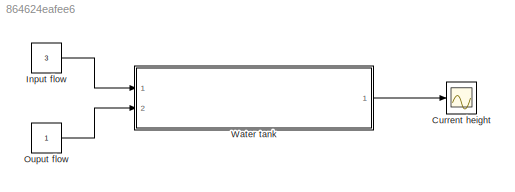
MODEL slx_864624eafee6
KIND model
CONFIG AbsTol = auto
CONFIG EnableMultiTasking = off
CONFIG FixedStep = 0.1
CONFIG MaxStep = auto
CONFIG MinStep = auto
CONFIG RelTol = 1e-3
CONFIG SampleTimeConstraint = Unconstrained
CONFIG SolverName = VariableStepAuto
CONFIG StartTime = 0.0
CONFIG StopTime = 1000
BLOCK [Scope] Current height
  Floating = off
  NumInputPorts = 1
  Ports = [1]
  ScopeSpecificationString = Simulink.scopes.TimeScopeBlockCfg('CurrentConfiguration', extmgr.ConfigurationSet(extmgr.Configuration('Core','General UI',true,'ShowMainToolbar',false,'ShowStatusbar',false),extmgr.Configuration('Core','Source UI',true),extmgr.Configuration('Sources','WiredSimulink',true),extmgr.Configuration('Visuals','Time Domain',true,'SerializedDisplays',{struct('MinYLimReal','-0.252','MaxYLimReal','2.26801',...<+1429ch>
BLOCK [Constant] Input flow
  Value = 3
BLOCK [Constant] Ouput flow
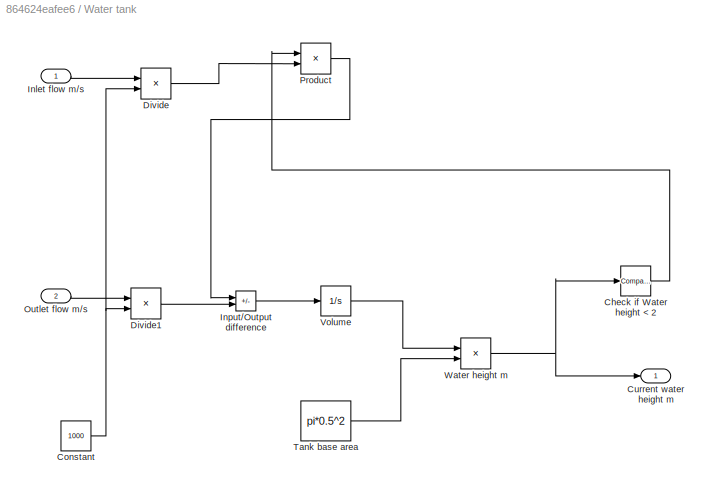
BLOCK [SubSystem] Water tank
  Ports = [2, 1]
  RequestExecContextInheritance = off
BLOCK [Inport] Water tank/ Outlet flow m//s
  Port = 2
BLOCK [Reference] Water tank/Check if Water height < 2   REF=simulink/Logic and Bit
Operations/Compare
To Constant
  Ports = [1, 1]
  SourceBlock = simulink/Logic and Bit\nOperations/Compare\nTo Constant
  SourceProductBaseCode = SL
  SourceType = Compare To Constant
BLOCK [Constant] Water tank/Constant
  Value = 1000
BLOCK [Outport] Water tank/Current water height m
BLOCK [Product] Water tank/Divide
  Inputs = */
  Ports = [2, 1]
BLOCK [Product] Water tank/Divide1
  Inputs = */
  Ports = [2, 1]
BLOCK [Inport] Water tank/Inlet flow m//s
BLOCK [Sum] Water tank/Input//Output difference
  IconShape = rectangular
  Inputs = |+-
  Ports = [2, 1]
BLOCK [Product] Water tank/Product
  Ports = [2, 1]
BLOCK [Constant] Water tank/Tank base area
  Value = pi*0.5^2
BLOCK [Integrator] Water tank/Volume
  Ports = [1, 1]
BLOCK [Product] Water tank/Water height m
  Inputs = */
  Ports = [2, 1]
LINE Input flow:1 -> Water tank:1
LINE Ouput flow:1 -> Water tank:2
LINE Water tank/ Outlet flow m//s:1 -> Water tank/Divide1:1
LINE Water tank/Check if Water height < 2 :1 -> Water tank/Product:1
NET Water tank/Constant:1 -> Water tank/Divide1:2, Water tank/Divide:2
LINE Water tank/Divide1:1 -> Water tank/Input//Output difference:2
LINE Water tank/Divide:1 -> Water tank/Product:2
LINE Water tank/Inlet flow m//s:1 -> Water tank/Divide:1
LINE Water tank/Input//Output difference:1 -> Water tank/Volume:1
LINE Water tank/Product:1 -> Water tank/Input//Output difference:1
LINE Water tank/Tank base area:1 -> Water tank/Water height m:2
LINE Water tank/Volume:1 -> Water tank/Water height m:1
NET Water tank/Water height m:1 -> Water tank/Check if Water height < 2 :1, Water tank/Current water height m:1
LINE Water tank:1 -> Current height:1
note: NET lines group one-source signal fan-out (src -> all destinations, sorted); 1:1 wires keep LINE
